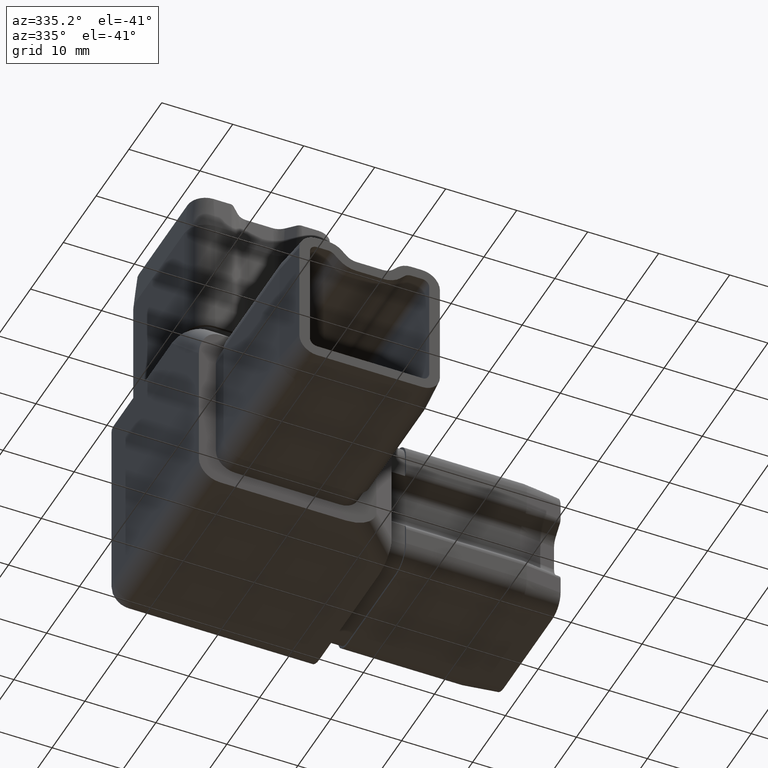
[diagram: clean part render]
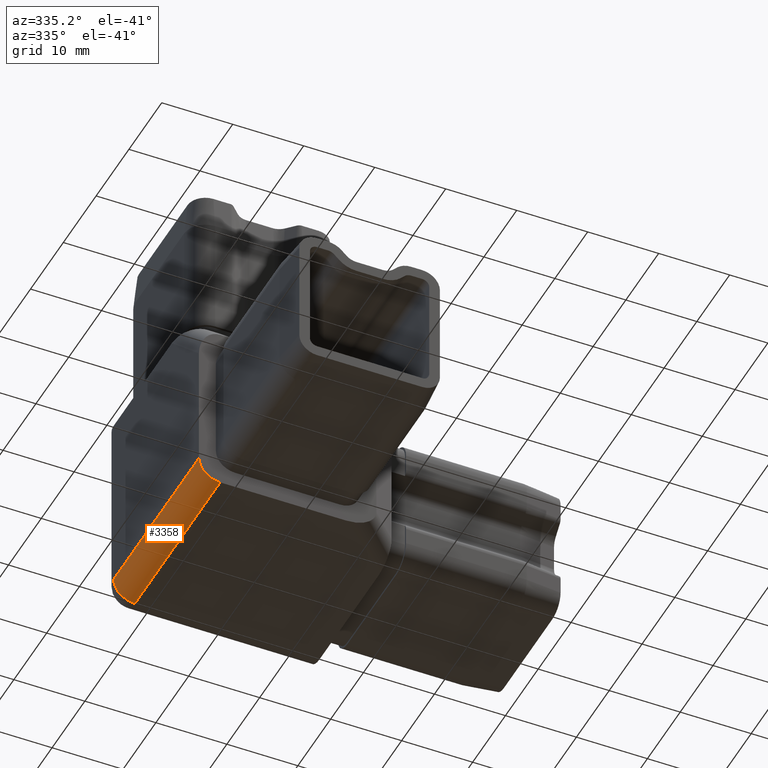
[diagram: same view with one face highlighted and labeled with its STEP entity id]
A machine part, auxiliary view. The second image highlights one B-rep face of the part: STEP entity #3358.
In plain terms, the highlighted cylindrical surface (edge-blend (fillet) strip) has radius 3 mm, axis along (0, -1, 0).
Its self-contained STEP definition (entity closure, byte-faithful):
#401 = CARTESIAN_POINT ( 'NONE',  ( -11.50000000000000000, -14.49999999999999800, -14.50000000000000000 ) ) ;
#776 = CIRCLE ( 'NONE', #4875, 2.999999999999999100 ) ;
#1816 = LINE ( 'NONE', #2181, #3928 ) ;
#2007 = DIRECTION ( 'NONE',  ( -1.196361017915039200E-016, 1.000000000000000000, -0.0000000000000000000 ) ) ;
#2181 = CARTESIAN_POINT ( 'NONE',  ( -11.50000000000000200, -1.375815170602295300E-015, -14.50000000000000000 ) ) ;
#2679 = CARTESIAN_POINT ( 'NONE',  ( -11.50000000000000400, 11.50000000000000400, -11.50000000000000000 ) ) ;
#3305 = VERTEX_POINT ( 'NONE', #15923 ) ;
#3349 = VERTEX_POINT ( 'NONE', #14786 ) ;
#3358 = ADVANCED_FACE ( 'NONE', ( #3790 ), #16221, .T. ) ;
#3382 = DIRECTION ( 'NONE',  ( 1.196361017915039200E-016, -1.000000000000000000, 0.0000000000000000000 ) ) ;
#3581 = AXIS2_PLACEMENT_3D ( 'NONE', #4033, #6917, #5403 ) ;
#3760 = DIRECTION ( 'NONE',  ( 1.000000000000000000, 0.0000000000000000000, 0.0000000000000000000 ) ) ;
#3790 = FACE_OUTER_BOUND ( 'NONE', #9874, .T. ) ;
#3928 = VECTOR ( 'NONE', #2007, 1000.000000000000000 ) ;
#4033 = CARTESIAN_POINT ( 'NONE',  ( -11.50000000000000000, -14.49999999999999800, -11.50000000000000200 ) ) ;
#4046 = DIRECTION ( 'NONE',  ( -0.0000000000000000000, -1.000000000000000000, -0.0000000000000000000 ) ) ;
#4562 = CIRCLE ( 'NONE', #3581, 3.000000000000000900 ) ;
#4875 = AXIS2_PLACEMENT_3D ( 'NONE', #2679, #4046, #13621 ) ;
#5403 = DIRECTION ( 'NONE',  ( 0.0000000000000000000, 0.0000000000000000000, 1.000000000000000000 ) ) ;
#6917 = DIRECTION ( 'NONE',  ( -0.0000000000000000000, -1.000000000000000000, -0.0000000000000000000 ) ) ;
#7140 = EDGE_CURVE ( 'NONE', #3305, #3349, #776, .T. ) ;
#7207 = EDGE_CURVE ( 'NONE', #17383, #3349, #1816, .T. ) ;
#8167 = ORIENTED_EDGE ( 'NONE', *, *, #15594, .F. ) ;
#8842 = VECTOR ( 'NONE', #3382, 1000.000000000000000 ) ;
#8885 = CARTESIAN_POINT ( 'NONE',  ( -14.50000000000000400, 14.50000000000000200, -11.50000000000000200 ) ) ;
#9874 = EDGE_LOOP ( 'NONE', ( #17049, #11879, #12571, #8167 ) ) ;
#11879 = ORIENTED_EDGE ( 'NONE', *, *, #7207, .F. ) ;
#11975 = DIRECTION ( 'NONE',  ( 1.196361017915039200E-016, -1.000000000000000000, 0.0000000000000000000 ) ) ;
#12180 = VERTEX_POINT ( 'NONE', #14179 ) ;
#12571 = ORIENTED_EDGE ( 'NONE', *, *, #15755, .F. ) ;
#13621 = DIRECTION ( 'NONE',  ( 0.0000000000000000000, 0.0000000000000000000, 1.000000000000000000 ) ) ;
#14179 = CARTESIAN_POINT ( 'NONE',  ( -14.50000000000000000, -14.49999999999999800, -11.49999999999999500 ) ) ;
#14786 = CARTESIAN_POINT ( 'NONE',  ( -11.50000000000000400, 11.50000000000000400, -14.50000000000000000 ) ) ;
#14840 = CARTESIAN_POINT ( 'NONE',  ( -11.50000000000000400, 14.50000000000000200, -11.50000000000000200 ) ) ;
#15277 = LINE ( 'NONE', #8885, #8842 ) ;
#15594 = EDGE_CURVE ( 'NONE', #3305, #12180, #15277, .T. ) ;
#15721 = AXIS2_PLACEMENT_3D ( 'NONE', #14840, #11975, #3760 ) ;
#15755 = EDGE_CURVE ( 'NONE', #12180, #17383, #4562, .T. ) ;
#15923 = CARTESIAN_POINT ( 'NONE',  ( -14.50000000000000400, 11.50000000000000400, -11.50000000000000200 ) ) ;
#16221 = CYLINDRICAL_SURFACE ( 'NONE', #15721, 2.999999999999999100 ) ;
#17049 = ORIENTED_EDGE ( 'NONE', *, *, #7140, .T. ) ;
#17383 = VERTEX_POINT ( 'NONE', #401 ) ;